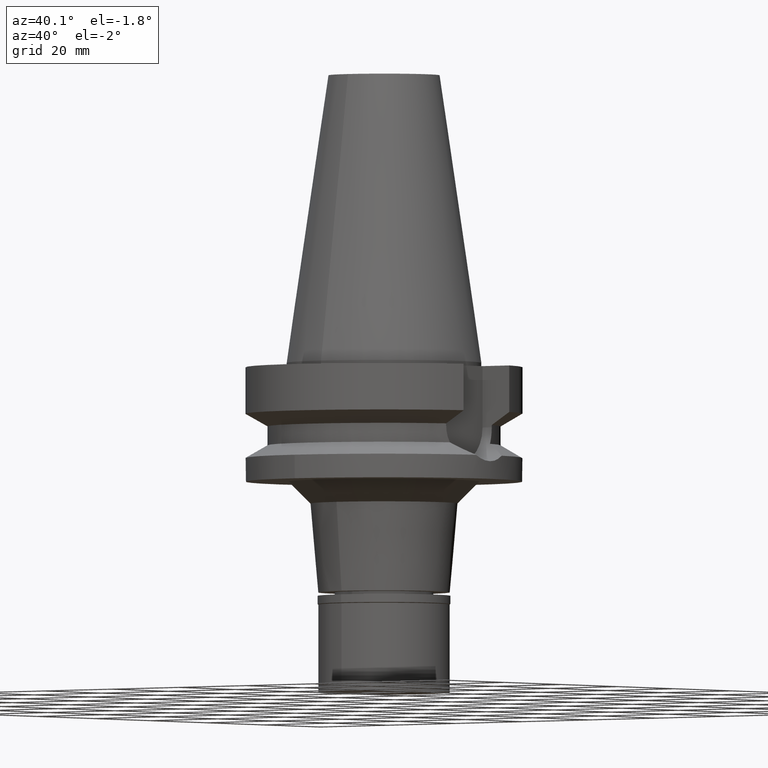
[diagram: clean part render]
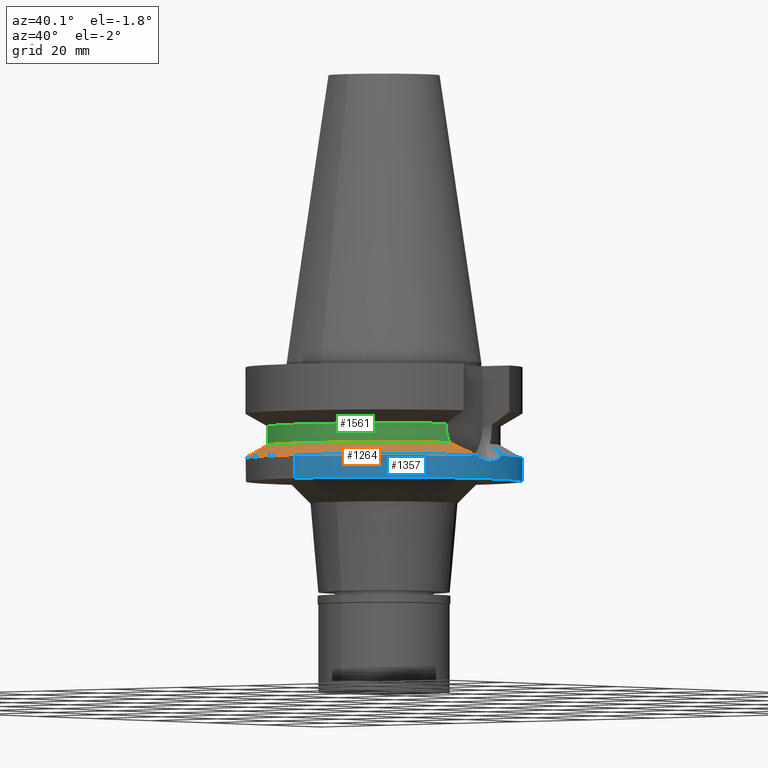
[diagram: same view with three faces highlighted in distinct colors, each labeled with its STEP entity id]
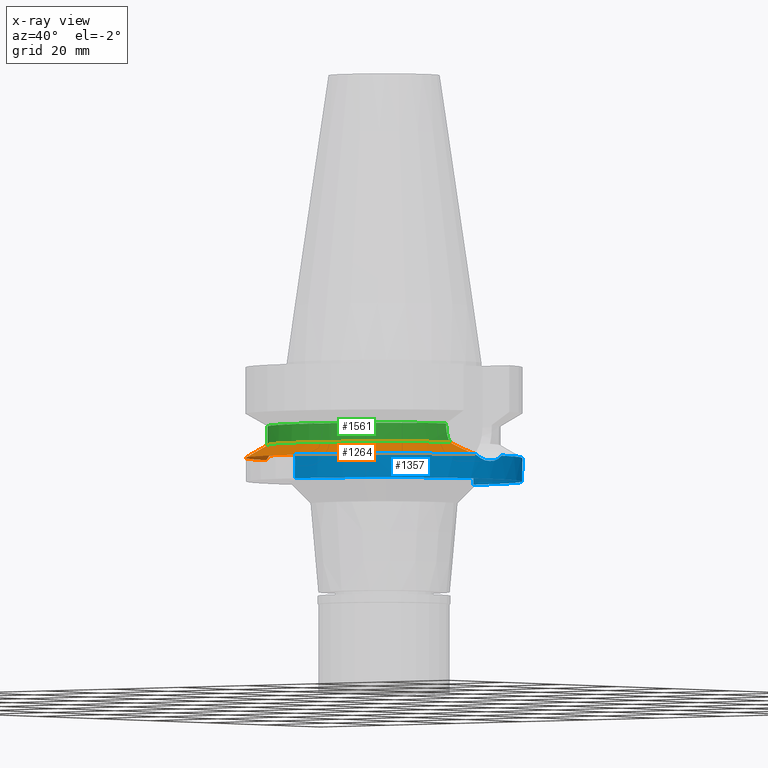
[diagram: x-ray of the same camera — body ghosted, the three highlighted faces saturated]
A machine part, auxiliary view with three faces highlighted in distinct colors.
The next image is the same camera in x-ray (body ghosted, the three faces saturated) — at least one of them is partly hidden behind the body in this view.
Their STEP definitions:

[orange] entity #1264 — the highlighted conical surface has half-angle 60 deg.
#48 = CARTESIAN_POINT ( 'NONE',  ( -29.40350388405149218, -5.603938212028698018, -20.72965517905958066 ) ) ;
#99 = EDGE_CURVE ( 'NONE', #1565, #2712, #1625, .T. ) ;
#110 = ORIENTED_EDGE ( 'NONE', *, *, #2774, .F. ) ;
#131 = ORIENTED_EDGE ( 'NONE', *, *, #2134, .F. ) ;
#154 = DIRECTION ( 'NONE',  ( -0.9634623335000935818, -0.2678438573619981722, 0.0000000000000000000 ) ) ;
#165 = CIRCLE ( 'NONE', #1531, 26.49999999999998224 ) ;
#167 = CARTESIAN_POINT ( 'NONE',  ( 0.0000000000000000000, 0.0000000000000000000, -20.19111867435999841 ) ) ;
#168 = CARTESIAN_POINT ( 'NONE',  ( 25.53175183775000079, -7.097862220092999941, -18.74774300138999905 ) ) ;
#186 = CARTESIAN_POINT ( 'NONE',  ( 27.86435918377263476, -6.316252926308689730, -19.94359010589186454 ) ) ;
#215 = DIRECTION ( 'NONE',  ( 0.0000000000000000000, 0.0000000000000000000, -1.000000000000000000 ) ) ;
#242 = CARTESIAN_POINT ( 'NONE',  ( -26.81419943380917204, -6.745339351560969199, -19.40659715485463366 ) ) ;
#312 = CARTESIAN_POINT ( 'NONE',  ( 0.0000000000000000000, 0.0000000000000000000, -18.74774300138999905 ) ) ;
#362 = EDGE_LOOP ( 'NONE', ( #683, #2777, #110, #131, #2847 ) ) ;
#463 = AXIS2_PLACEMENT_3D ( 'NONE', #1758, #832, #1802 ) ;
#470 = CARTESIAN_POINT ( 'NONE',  ( -31.17899877608999759, -4.485536235554000051, -21.63449434733000132 ) ) ;
#499 = DIRECTION ( 'NONE',  ( 0.0000000000000000000, 0.0000000000000000000, -1.000000000000000000 ) ) ;
#504 = CARTESIAN_POINT ( 'NONE',  ( -28.96710954436001018, -5.824544619855954508, -20.50686316746844184 ) ) ;
#540 = CARTESIAN_POINT ( 'NONE',  ( -28.91290062325497701, -5.850838485467669159, -20.47918176812470747 ) ) ;
#567 = CARTESIAN_POINT ( 'NONE',  ( -25.53175183775000079, -7.097862220092999941, -18.74774300138999905 ) ) ;
#661 = CARTESIAN_POINT ( 'NONE',  ( 27.59866864849412593, -6.421485500541467495, -19.80773105020917768 ) ) ;
#683 = ORIENTED_EDGE ( 'NONE', *, *, #2898, .F. ) ;
#695 = CARTESIAN_POINT ( 'NONE',  ( 28.79422121456662254, -5.907518177660484149, -20.41857338895112406 ) ) ;
#710 = CARTESIAN_POINT ( 'NONE',  ( 0.0000000000000000000, 0.0000000000000000000, -21.63449434733000132 ) ) ;
#832 = DIRECTION ( 'NONE',  ( 0.0000000000000000000, 0.0000000000000000000, -1.000000000000000000 ) ) ;
#908 = VERTEX_POINT ( 'NONE', #1366 ) ;
#912 = CARTESIAN_POINT ( 'NONE',  ( 28.61442838368106223, -5.991210968606418774, -20.32676291958354042 ) ) ;
#927 = CARTESIAN_POINT ( 'NONE',  ( 31.17899877608999759, -4.485536235554000051, -21.63449434733000132 ) ) ;
#1164 = CARTESIAN_POINT ( 'NONE',  ( 28.73364976554436367, -5.936010876309831374, -20.38764316961768941 ) ) ;
#1233 = CONICAL_SURFACE ( 'NONE', #2843, 29.00000000000000000, 1.047197551196400456 ) ;
#1264 = ADVANCED_FACE ( 'NONE', ( #1573 ), #1233, .T. ) ;
#1366 = CARTESIAN_POINT ( 'NONE',  ( 25.53175183775000079, -7.097862220092999941, -18.74774300138999905 ) ) ;
#1373 = DIRECTION ( 'NONE',  ( 0.0000000000000000000, 0.0000000000000000000, 1.000000000000000000 ) ) ;
#1443 = CARTESIAN_POINT ( 'NONE',  ( -25.53175183775000079, -7.097862220092999941, -18.74774300138999905 ) ) ;
#1531 = AXIS2_PLACEMENT_3D ( 'NONE', #312, #1373, #154 ) ;
#1533 = AXIS2_PLACEMENT_3D ( 'NONE', #710, #499, #1933 ) ;
#1565 = VERTEX_POINT ( 'NONE', #1769 ) ;
#1573 = FACE_OUTER_BOUND ( 'NONE', #362, .T. ) ;
#1625 = CIRCLE ( 'NONE', #463, 31.50000000000001421 ) ;
#1657 = CARTESIAN_POINT ( 'NONE',  ( 0.0000000000000000000, -31.50000000000000000, -21.63449434733000132 ) ) ;
#1724 = CARTESIAN_POINT ( 'NONE',  ( -30.85625216435878926, -4.730393970432071882, -21.47018599650202830 ) ) ;
#1758 = CARTESIAN_POINT ( 'NONE',  ( 0.0000000000000000000, 0.0000000000000000000, -21.63449434733000132 ) ) ;
#1769 = CARTESIAN_POINT ( 'NONE',  ( 31.17899877608999759, -4.485536235554000051, -21.63449434733000132 ) ) ;
#1802 = DIRECTION ( 'NONE',  ( 0.9898094849552905306, -0.1423979757318985240, 0.0000000000000000000 ) ) ;
#1853 = CARTESIAN_POINT ( 'NONE',  ( -31.17899877608999759, -4.485536235554000051, -21.63449434733000132 ) ) ;
#1915 = B_SPLINE_CURVE_WITH_KNOTS ( 'NONE', 3,
 ( #470, #1724, #3128, #2669, #2705, #48, #1984, #2460, #504, #540, #2635, #242, #1443 ),
 .UNSPECIFIED., .F., .F.,
 ( 4, 2, 2, 1, 2, 2, 4 ),
 ( 0.0000000000000000000, 0.2500000000000008882, 0.3750000000000011102, 0.4375000000000021094, 0.4687500000000023870, 0.5000000000000026645, 1.000000000000000000 ),
 .UNSPECIFIED. ) ;
#1933 = DIRECTION ( 'NONE',  ( 0.0000000000000000000, -1.000000000000000000, 0.0000000000000000000 ) ) ;
#1963 = DIRECTION ( 'NONE',  ( 0.0000000000000000000, -1.000000000000000000, 0.0000000000000000000 ) ) ;
#1984 = CARTESIAN_POINT ( 'NONE',  ( -29.24307602562605624, -5.687591951232541909, -20.64776784857496139 ) ) ;
#2075 = VERTEX_POINT ( 'NONE', #567 ) ;
#2105 = CARTESIAN_POINT ( 'NONE',  ( 26.17212399451469906, -6.921834887416557613, -19.07673254961257925 ) ) ;
#2133 = CARTESIAN_POINT ( 'NONE',  ( 29.75652916413529780, -5.448105611147416205, -20.90999356220572736 ) ) ;
#2134 = EDGE_CURVE ( 'NONE', #2075, #908, #165, .T. ) ;
#2177 = VERTEX_POINT ( 'NONE', #1853 ) ;
#2302 = CIRCLE ( 'NONE', #1533, 31.50000000000000000 ) ;
#2347 = EDGE_CURVE ( 'NONE', #2177, #2075, #1915, .T. ) ;
#2460 = CARTESIAN_POINT ( 'NONE',  ( -29.07810225808222171, -5.769943808655979112, -20.56353691852229915 ) ) ;
#2589 = CARTESIAN_POINT ( 'NONE',  ( 28.24654632375923313, -6.155093236593185857, -20.13887758022251617 ) ) ;
#2635 = CARTESIAN_POINT ( 'NONE',  ( -27.92181599709195439, -6.324301122582865808, -19.97306573289662879 ) ) ;
#2669 = CARTESIAN_POINT ( 'NONE',  ( -29.92007977566263222, -5.320280169802253489, -20.99321526959411344 ) ) ;
#2705 = CARTESIAN_POINT ( 'NONE',  ( -29.71829838874449337, -5.435026389750371223, -20.89029780692690963 ) ) ;
#2712 = VERTEX_POINT ( 'NONE', #1657 ) ;
#2774 = EDGE_CURVE ( 'NONE', #908, #1565, #3127, .T. ) ;
#2777 = ORIENTED_EDGE ( 'NONE', *, *, #99, .F. ) ;
#2843 = AXIS2_PLACEMENT_3D ( 'NONE', #167, #215, #1963 ) ;
#2847 = ORIENTED_EDGE ( 'NONE', *, *, #2347, .F. ) ;
#2898 = EDGE_CURVE ( 'NONE', #2712, #2177, #2302, .T. ) ;
#3076 = CARTESIAN_POINT ( 'NONE',  ( 26.76889971679631230, -6.728566986563055963, -19.38294419845960093 ) ) ;
#3093 = CARTESIAN_POINT ( 'NONE',  ( 28.43355272801973044, -6.073684701709576750, -20.23439745110571053 ) ) ;
#3107 = CARTESIAN_POINT ( 'NONE',  ( 30.53258623465156063, -4.975949163022271193, -21.30540962644920810 ) ) ;
#3127 = B_SPLINE_CURVE_WITH_KNOTS ( 'NONE', 3,
 ( #168, #2105, #3076, #661, #186, #2589, #3093, #912, #1164, #695, #2133, #3107, #927 ),
 .UNSPECIFIED., .F., .F.,
 ( 4, 2, 2, 1, 2, 2, 4 ),
 ( 0.0000000000000000000, 0.2500000000000010547, 0.3750000000000016653, 0.4375000000000013323, 0.4687500000000006106, 0.4999999999999998335, 1.000000000000000000 ),
 .UNSPECIFIED. ) ;
#3128 = CARTESIAN_POINT ( 'NONE',  ( -30.50117908778555531, -4.970651603780756211, -21.28943610688037680 ) ) ;

[blue] entity #1357 — the highlighted cylindrical surface (partial cylindrical patch) has radius 31.5 mm, axis along (0, 0, -1).
#6 = DIRECTION ( 'NONE',  ( 0.0000000000000000000, 1.000000000000000000, 0.0000000000000000000 ) ) ;
#36 = VERTEX_POINT ( 'NONE', #1468 ) ;
#99 = EDGE_CURVE ( 'NONE', #1565, #2712, #1625, .T. ) ;
#105 = CARTESIAN_POINT ( 'NONE',  ( 31.41965005813987588, 2.247072451102948953, -22.68008986002388738 ) ) ;
#136 = CARTESIAN_POINT ( 'NONE',  ( 31.40784684085238254, -2.406367806374613671, -22.63197621435551099 ) ) ;
#149 = CARTESIAN_POINT ( 'NONE',  ( 0.0000000000000000000, -31.50000000000000000, -21.63449434733000132 ) ) ;
#164 = CARTESIAN_POINT ( 'NONE',  ( 31.47114290507604295, -1.554796663187710148, -22.89008434577294793 ) ) ;
#191 = EDGE_CURVE ( 'NONE', #1565, #2492, #199, .T. ) ;
#199 = B_SPLINE_CURVE_WITH_KNOTS ( 'NONE', 3,
 ( #2561, #3074, #2805, #2575, #1321, #2057, #2037, #401, #136, #2298, #1114, #2342, #164, #2758, #373 ),
 .UNSPECIFIED., .F., .F.,
 ( 4, 2, 2, 1, 1, 1, 2, 2, 4 ),
 ( 0.0000000000000000000, 0.2500000000000011102, 0.3750000000000013323, 0.4375000000000013878, 0.4687500000000012212, 0.4843750000000013878, 0.4921875000000011102, 0.5000000000000008882, 1.000000000000000000 ),
 .UNSPECIFIED. ) ;
#247 = DIRECTION ( 'NONE',  ( 0.0000000000000000000, -1.000000000000000000, 0.0000000000000000000 ) ) ;
#311 = CARTESIAN_POINT ( 'NONE',  ( 31.50000000000000000, 0.0000000000000000000, -23.00000000000000000 ) ) ;
#356 = CARTESIAN_POINT ( 'NONE',  ( 31.47114559338426432, 1.356374570415840752, -22.88735630185001924 ) ) ;
#365 = EDGE_CURVE ( 'NONE', #3032, #36, #1327, .T. ) ;
#373 = CARTESIAN_POINT ( 'NONE',  ( 31.50000000000000000, 0.0000000000000000000, -23.00000000000000000 ) ) ;
#401 = CARTESIAN_POINT ( 'NONE',  ( 31.40207367289674067, -2.480881812461656288, -22.60840945407103320 ) ) ;
#416 = CARTESIAN_POINT ( 'NONE',  ( 0.0000000000000000000, 2.107433444312999912E-14, -27.00000000000000000 ) ) ;
#463 = AXIS2_PLACEMENT_3D ( 'NONE', #1758, #832, #1802 ) ;
#553 = CARTESIAN_POINT ( 'NONE',  ( 31.17899877608999759, 4.485536235554000051, -21.63449434733000132 ) ) ;
#568 = AXIS2_PLACEMENT_3D ( 'NONE', #416, #2180, #247 ) ;
#654 = ORIENTED_EDGE ( 'NONE', *, *, #365, .T. ) ;
#743 = CYLINDRICAL_SURFACE ( 'NONE', #1184, 31.50000000000000000 ) ;
#816 = DIRECTION ( 'NONE',  ( 0.0000000000000000000, 1.099151708819000049E-13, -1.000000000000000000 ) ) ;
#829 = CARTESIAN_POINT ( 'NONE',  ( 0.0000000000000000000, -31.50000000000000000, -27.00000000000000000 ) ) ;
#832 = DIRECTION ( 'NONE',  ( 0.0000000000000000000, 0.0000000000000000000, -1.000000000000000000 ) ) ;
#835 = CARTESIAN_POINT ( 'NONE',  ( 31.43710641057978350, 1.991379779744103296, -22.75094280097368227 ) ) ;
#1001 = VERTEX_POINT ( 'NONE', #1777 ) ;
#1058 = CARTESIAN_POINT ( 'NONE',  ( 31.49278639834606608, 0.7710438196499757035, -22.97268655621895306 ) ) ;
#1068 = CARTESIAN_POINT ( 'NONE',  ( 31.36328283755199919, 3.007832628915092954, -22.45025453262910986 ) ) ;
#1114 = CARTESIAN_POINT ( 'NONE',  ( 31.41185438971861288, -2.353388662175909030, -22.64832348432847908 ) ) ;
#1170 = EDGE_CURVE ( 'NONE', #2712, #3032, #2330, .T. ) ;
#1184 = AXIS2_PLACEMENT_3D ( 'NONE', #2631, #2871, #1669 ) ;
#1261 = CARTESIAN_POINT ( 'NONE',  ( 31.41700835831545646, 2.283543664118167449, -22.66933216880426727 ) ) ;
#1310 = CARTESIAN_POINT ( 'NONE',  ( 31.50000000000000000, 0.0000000000000000000, -23.00000000000000000 ) ) ;
#1321 = CARTESIAN_POINT ( 'NONE',  ( 31.35452407079063164, -3.025350768281658720, -22.41224209226361097 ) ) ;
#1327 = CIRCLE ( 'NONE', #568, 31.50000000000000000 ) ;
#1357 = ADVANCED_FACE ( 'NONE', ( #3105 ), #743, .T. ) ;
#1395 = EDGE_CURVE ( 'NONE', #2247, #1001, #1587, .T. ) ;
#1468 = CARTESIAN_POINT ( 'NONE',  ( 0.0000000000000000000, 31.50000000000000000, -27.00000000000000000 ) ) ;
#1530 = CARTESIAN_POINT ( 'NONE',  ( 0.0000000000000000000, 31.50000000000000000, -21.63449434733000132 ) ) ;
#1565 = VERTEX_POINT ( 'NONE', #1769 ) ;
#1575 = LINE ( 'NONE', #1530, #2041 ) ;
#1587 = CIRCLE ( 'NONE', #1998, 31.50000000000000000 ) ;
#1625 = CIRCLE ( 'NONE', #463, 31.50000000000001421 ) ;
#1657 = CARTESIAN_POINT ( 'NONE',  ( 0.0000000000000000000, -31.50000000000000000, -21.63449434733000132 ) ) ;
#1669 = DIRECTION ( 'NONE',  ( 0.0000000000000000000, -1.000000000000000000, 0.0000000000000000000 ) ) ;
#1758 = CARTESIAN_POINT ( 'NONE',  ( 0.0000000000000000000, 0.0000000000000000000, -21.63449434733000132 ) ) ;
#1760 = CARTESIAN_POINT ( 'NONE',  ( 31.44589798759550447, 1.844932280561417892, -22.78637270914717661 ) ) ;
#1769 = CARTESIAN_POINT ( 'NONE',  ( 31.17899877608999759, -4.485536235554000051, -21.63449434733000132 ) ) ;
#1774 = CARTESIAN_POINT ( 'NONE',  ( 31.42566608920675009, 2.161912855910136599, -22.70455434715237786 ) ) ;
#1777 = CARTESIAN_POINT ( 'NONE',  ( 31.17899877608999759, 4.485536235554000051, -21.63449434733000132 ) ) ;
#1786 = CARTESIAN_POINT ( 'NONE',  ( 31.28513683619772578, 3.747769718380133064, -22.12956222744666590 ) ) ;
#1802 = DIRECTION ( 'NONE',  ( 0.9898094849552905306, -0.1423979757318985240, 0.0000000000000000000 ) ) ;
#1809 = EDGE_LOOP ( 'NONE', ( #2184, #2533, #654, #1811, #2922, #2466, #2307 ) ) ;
#1811 = ORIENTED_EDGE ( 'NONE', *, *, #2558, .F. ) ;
#1998 = AXIS2_PLACEMENT_3D ( 'NONE', #2408, #2391, #6 ) ;
#2016 = CARTESIAN_POINT ( 'NONE',  ( 31.41422043550593557, 2.321593114297240579, -22.65797165830771576 ) ) ;
#2026 = CARTESIAN_POINT ( 'NONE',  ( 31.46212859131685491, 1.551903289493235860, -22.85152805513951435 ) ) ;
#2037 = CARTESIAN_POINT ( 'NONE',  ( 31.38995345624571343, -2.631089804232396467, -22.55883194694496652 ) ) ;
#2041 = VECTOR ( 'NONE', #816, 1000.000000000000000 ) ;
#2057 = CARTESIAN_POINT ( 'NONE',  ( 31.37858090356238705, -2.761758643354512266, -22.51201132467612354 ) ) ;
#2180 = DIRECTION ( 'NONE',  ( 0.0000000000000000000, 0.0000000000000000000, 1.000000000000000000 ) ) ;
#2184 = ORIENTED_EDGE ( 'NONE', *, *, #99, .T. ) ;
#2247 = VERTEX_POINT ( 'NONE', #2614 ) ;
#2288 = CARTESIAN_POINT ( 'NONE',  ( 31.50000000000000000, 0.3825415463719509246, -23.00000000000000355 ) ) ;
#2298 = CARTESIAN_POINT ( 'NONE',  ( 31.41025956846841538, -2.374562832960464220, -22.64181864170914338 ) ) ;
#2307 = ORIENTED_EDGE ( 'NONE', *, *, #191, .F. ) ;
#2330 = LINE ( 'NONE', #149, #2749 ) ;
#2342 = CARTESIAN_POINT ( 'NONE',  ( 31.41252693101175097, -2.344406219114904655, -22.65106619706597257 ) ) ;
#2343 = DIRECTION ( 'NONE',  ( 0.0000000000000000000, -1.105773104655000034E-13, -1.000000000000000000 ) ) ;
#2391 = DIRECTION ( 'NONE',  ( 0.0000000000000000000, 0.0000000000000000000, -1.000000000000000000 ) ) ;
#2408 = CARTESIAN_POINT ( 'NONE',  ( 0.0000000000000000000, 0.0000000000000000000, -21.63449434733000132 ) ) ;
#2466 = ORIENTED_EDGE ( 'NONE', *, *, #2503, .F. ) ;
#2492 = VERTEX_POINT ( 'NONE', #1310 ) ;
#2503 = EDGE_CURVE ( 'NONE', #2492, #1001, #3091, .T. ) ;
#2533 = ORIENTED_EDGE ( 'NONE', *, *, #1170, .T. ) ;
#2558 = EDGE_CURVE ( 'NONE', #2247, #36, #1575, .T. ) ;
#2561 = CARTESIAN_POINT ( 'NONE',  ( 31.17899877608999759, -4.485536235554000051, -21.63449434733000132 ) ) ;
#2575 = CARTESIAN_POINT ( 'NONE',  ( 31.33673721240262822, -3.204096009966329373, -22.33755624056735201 ) ) ;
#2614 = CARTESIAN_POINT ( 'NONE',  ( 0.0000000000000000000, 31.50000000000000000, -21.63449434733000132 ) ) ;
#2631 = CARTESIAN_POINT ( 'NONE',  ( 0.0000000000000000000, 2.107433444312999912E-14, 72.08499999999999375 ) ) ;
#2712 = VERTEX_POINT ( 'NONE', #1657 ) ;
#2749 = VECTOR ( 'NONE', #2343, 1000.000000000000000 ) ;
#2758 = CARTESIAN_POINT ( 'NONE',  ( 31.49999999999999289, -0.7651554268863721697, -23.00000000000000355 ) ) ;
#2805 = CARTESIAN_POINT ( 'NONE',  ( 31.27812972761810073, -3.746556030102364598, -22.08615384558201100 ) ) ;
#2871 = DIRECTION ( 'NONE',  ( 0.0000000000000000000, 0.0000000000000000000, -1.000000000000000000 ) ) ;
#2922 = ORIENTED_EDGE ( 'NONE', *, *, #1395, .T. ) ;
#2960 = CARTESIAN_POINT ( 'NONE',  ( 31.41523313603342871, 2.307851765032669089, -22.66209965112653180 ) ) ;
#3032 = VERTEX_POINT ( 'NONE', #829 ) ;
#3074 = CARTESIAN_POINT ( 'NONE',  ( 31.23206219160106656, -4.116692003674748079, -21.88200209906488070 ) ) ;
#3091 = B_SPLINE_CURVE_WITH_KNOTS ( 'NONE', 3,
 ( #311, #2288, #1058, #356, #2026, #1760, #835, #1774, #105, #1261, #2960, #2016, #1068, #1786, #553 ),
 .UNSPECIFIED., .F., .F.,
 ( 4, 2, 2, 1, 1, 1, 2, 2, 4 ),
 ( 0.0000000000000000000, 0.2500000000000113243, 0.3750000000000170974, 0.4375000000000200950, 0.4687500000000218159, 0.4843750000000223155, 0.4921875000000220379, 0.5000000000000216493, 1.000000000000000000 ),
 .UNSPECIFIED. ) ;
#3105 = FACE_OUTER_BOUND ( 'NONE', #1809, .T. ) ;

[green] entity #1561 — the highlighted cylindrical surface (partial cylindrical patch) has radius 26.5 mm, axis along (0, 0, -1).
#53 = CARTESIAN_POINT ( 'NONE',  ( 0.0000000000000000000, 1.065333950388000029E-14, -14.45225699861000024 ) ) ;
#141 = CARTESIAN_POINT ( 'NONE',  ( -25.27268923712988880, -7.973297925131175745, -16.24528153449228896 ) ) ;
#154 = DIRECTION ( 'NONE',  ( -0.9634623335000935818, -0.2678438573619981722, 0.0000000000000000000 ) ) ;
#165 = CIRCLE ( 'NONE', #1531, 26.49999999999998224 ) ;
#200 = DIRECTION ( 'NONE',  ( 1.007127822896004137E-06, 3.158720356561015410E-06, -0.9999999999945041740 ) ) ;
#226 = CARTESIAN_POINT ( 'NONE',  ( -25.24772266958000344, -8.050000000000000711, -14.94999999999999929 ) ) ;
#294 = DIRECTION ( 'NONE',  ( 0.9527442516822307583, -0.3037735849057093818, 0.0000000000000000000 ) ) ;
#312 = CARTESIAN_POINT ( 'NONE',  ( 0.0000000000000000000, 0.0000000000000000000, -18.74774300138999905 ) ) ;
#345 = CARTESIAN_POINT ( 'NONE',  ( -25.32418278270155554, -7.806361859900751377, -16.91561764571308757 ) ) ;
#359 = CARTESIAN_POINT ( 'NONE',  ( -25.39163787691478191, -7.584845155549783335, -17.65187522139927623 ) ) ;
#410 = CARTESIAN_POINT ( 'NONE',  ( 25.29454383591339806, -7.902025198966803110, -16.48862120007727583 ) ) ;
#442 = CARTESIAN_POINT ( 'NONE',  ( 25.28049748601338109, -7.946994850372498753, -16.24429618630633598 ) ) ;
#545 = ORIENTED_EDGE ( 'NONE', *, *, #2058, .F. ) ;
#548 = DIRECTION ( 'NONE',  ( 0.0000000000000000000, 0.0000000000000000000, -1.000000000000000000 ) ) ;
#560 = ORIENTED_EDGE ( 'NONE', *, *, #1699, .F. ) ;
#567 = CARTESIAN_POINT ( 'NONE',  ( -25.53175183775000079, -7.097862220092999941, -18.74774300138999905 ) ) ;
#600 = DIRECTION ( 'NONE',  ( -2.947868910946043749E-06, 9.245593034173126733E-06, 0.9999999999529145533 ) ) ;
#613 = CARTESIAN_POINT ( 'NONE',  ( -25.24772266958000344, -8.050000000000000711, -14.94999999999999929 ) ) ;
#701 = B_SPLINE_CURVE_WITH_KNOTS ( 'NONE', 3,
 ( #1156, #2863, #2384, #3114, #442, #410, #2398, #702, #1907, #1926, #2570, #2124, #2111, #1376 ),
 .UNSPECIFIED., .F., .F.,
 ( 4, 2, 2, 1, 1, 2, 2, 4 ),
 ( 0.0000000000000000000, 0.2499999999999875655, 0.3749999999999807376, 0.4374999999999785727, 0.4687499999999761302, 0.4843749999999760747, 0.4999999999999760192, 1.000000000000000000 ),
 .UNSPECIFIED. ) ;
#702 = CARTESIAN_POINT ( 'NONE',  ( 25.31205300124015523, -7.845639649894743606, -16.75318914316934382 ) ) ;
#797 = CARTESIAN_POINT ( 'NONE',  ( -25.53175183775000079, -7.097862220092999941, -18.74774300138999905 ) ) ;
#802 = CARTESIAN_POINT ( 'NONE',  ( 0.0000000000000000000, 2.107433444312999912E-14, 72.08499999999999375 ) ) ;
#811 = CYLINDRICAL_SURFACE ( 'NONE', #1952, 26.50000000000000000 ) ;
#908 = VERTEX_POINT ( 'NONE', #1366 ) ;
#959 = ORIENTED_EDGE ( 'NONE', *, *, #2123, .F. ) ;
#1015 = ORIENTED_EDGE ( 'NONE', *, *, #2134, .T. ) ;
#1040 = DIRECTION ( 'NONE',  ( 0.0000000000000000000, 0.0000000000000000000, -1.000000000000000000 ) ) ;
#1049 = CARTESIAN_POINT ( 'NONE',  ( -25.24772266958000344, -8.050000000000000711, -14.94999999999999929 ) ) ;
#1094 = CARTESIAN_POINT ( 'NONE',  ( -25.32549268443488444, -7.802113524032651348, -16.93239579624749425 ) ) ;
#1156 = CARTESIAN_POINT ( 'NONE',  ( 25.24772266958000344, -8.050000000000000711, -14.94999999999999929 ) ) ;
#1281 = CARTESIAN_POINT ( 'NONE',  ( -25.24772266958000344, -8.049999999999979394, -15.58995917009923993 ) ) ;
#1307 = CARTESIAN_POINT ( 'NONE',  ( 25.24772266958000344, -8.050000000000000711, -14.94999999999999929 ) ) ;
#1312 = CARTESIAN_POINT ( 'NONE',  ( -25.35410982913639444, -7.708872424743455909, -17.26994189693683879 ) ) ;
#1366 = CARTESIAN_POINT ( 'NONE',  ( 25.53175183775000079, -7.097862220092999941, -18.74774300138999905 ) ) ;
#1373 = DIRECTION ( 'NONE',  ( 0.0000000000000000000, 0.0000000000000000000, 1.000000000000000000 ) ) ;
#1376 = CARTESIAN_POINT ( 'NONE',  ( 25.53175183775000079, -7.097862220092999941, -18.74774300138999905 ) ) ;
#1378 = VECTOR ( 'NONE', #600, 1000.000000000000000 ) ;
#1479 = VECTOR ( 'NONE', #200, 999.9999999999998863 ) ;
#1493 = EDGE_CURVE ( 'NONE', #2634, #2940, #2900, .T. ) ;
#1510 = DIRECTION ( 'NONE',  ( 0.0000000000000000000, -1.000000000000000000, 0.0000000000000000000 ) ) ;
#1531 = AXIS2_PLACEMENT_3D ( 'NONE', #312, #1373, #154 ) ;
#1561 = ADVANCED_FACE ( 'NONE', ( #1755 ), #811, .T. ) ;
#1630 = VERTEX_POINT ( 'NONE', #226 ) ;
#1643 = LINE ( 'NONE', #2379, #1479 ) ;
#1690 = CARTESIAN_POINT ( 'NONE',  ( -25.24772413676000227, -8.049995398395999757, -14.45229216087999902 ) ) ;
#1699 = EDGE_CURVE ( 'NONE', #3044, #908, #701, .T. ) ;
#1716 = B_SPLINE_CURVE_WITH_KNOTS ( 'NONE', 3,
 ( #797, #1807, #2265, #359, #1763, #1312, #2323, #1821, #2780, #1094, #345, #141, #1281, #1049 ),
 .UNSPECIFIED., .F., .F.,
 ( 4, 2, 2, 1, 1, 2, 2, 4 ),
 ( 0.0000000000000000000, 0.2500000000000173750, 0.3750000000000248135, 0.4375000000000286993, 0.4687500000000293099, 0.4843750000000282552, 0.5000000000000272005, 1.000000000000000000 ),
 .UNSPECIFIED. ) ;
#1755 = FACE_OUTER_BOUND ( 'NONE', #2837, .T. ) ;
#1763 = CARTESIAN_POINT ( 'NONE',  ( -25.37572056917267460, -7.637749951107052127, -17.49806859187443564 ) ) ;
#1794 = AXIS2_PLACEMENT_3D ( 'NONE', #53, #1040, #294 ) ;
#1803 = CARTESIAN_POINT ( 'NONE',  ( 25.24772266958000344, -8.050000000000000711, -14.45225699861000024 ) ) ;
#1807 = CARTESIAN_POINT ( 'NONE',  ( -25.48481574508659619, -7.266696248285210658, -18.43219751299116638 ) ) ;
#1821 = CARTESIAN_POINT ( 'NONE',  ( -25.33291622355779182, -7.778016509996969141, -17.02546682202009976 ) ) ;
#1907 = CARTESIAN_POINT ( 'NONE',  ( 25.31651564365630946, -7.831204104224905649, -16.81418330723276355 ) ) ;
#1926 = CARTESIAN_POINT ( 'NONE',  ( 25.31953951064866715, -7.821415171321439708, -16.85483643466232095 ) ) ;
#1952 = AXIS2_PLACEMENT_3D ( 'NONE', #802, #548, #1510 ) ;
#2058 = EDGE_CURVE ( 'NONE', #2075, #1630, #1716, .T. ) ;
#2061 = LINE ( 'NONE', #613, #1378 ) ;
#2075 = VERTEX_POINT ( 'NONE', #567 ) ;
#2111 = CARTESIAN_POINT ( 'NONE',  ( 25.43788515050049526, -7.435510499323333633, -18.11668898747533163 ) ) ;
#2123 = EDGE_CURVE ( 'NONE', #1630, #2940, #2061, .T. ) ;
#2124 = CARTESIAN_POINT ( 'NONE',  ( 25.36818004982163899, -7.663723843674690173, -17.48832929065082453 ) ) ;
#2134 = EDGE_CURVE ( 'NONE', #2075, #908, #165, .T. ) ;
#2265 = CARTESIAN_POINT ( 'NONE',  ( -25.44392024329485480, -7.408267248949534256, -18.11703320962315544 ) ) ;
#2323 = CARTESIAN_POINT ( 'NONE',  ( -25.34387076451247012, -7.742375422224786696, -17.15652271135520479 ) ) ;
#2379 = CARTESIAN_POINT ( 'NONE',  ( 25.24772216828000282, -8.050001572268998373, -14.45224498509000099 ) ) ;
#2384 = CARTESIAN_POINT ( 'NONE',  ( 25.25396549175778560, -8.030898715954540634, -15.59375012140842820 ) ) ;
#2398 = CARTESIAN_POINT ( 'NONE',  ( 25.30215227544257317, -7.877591541979575673, -16.61078271360463177 ) ) ;
#2570 = CARTESIAN_POINT ( 'NONE',  ( 25.32121330089755418, -7.815992399065574858, -16.87694767644807214 ) ) ;
#2634 = VERTEX_POINT ( 'NONE', #1803 ) ;
#2729 = EDGE_CURVE ( 'NONE', #2634, #3044, #1643, .T. ) ;
#2780 = CARTESIAN_POINT ( 'NONE',  ( -25.32843378481433305, -7.792569787454151076, -16.96958526498131548 ) ) ;
#2837 = EDGE_LOOP ( 'NONE', ( #545, #1015, #560, #3109, #2879, #959 ) ) ;
#2863 = CARTESIAN_POINT ( 'NONE',  ( 25.24772266958001055, -8.050000000000000711, -15.26998665910054243 ) ) ;
#2879 = ORIENTED_EDGE ( 'NONE', *, *, #1493, .T. ) ;
#2900 = CIRCLE ( 'NONE', #1794, 26.50000000000000711 ) ;
#2940 = VERTEX_POINT ( 'NONE', #1690 ) ;
#3044 = VERTEX_POINT ( 'NONE', #1307 ) ;
#3109 = ORIENTED_EDGE ( 'NONE', *, *, #2729, .F. ) ;
#3114 = CARTESIAN_POINT ( 'NONE',  ( 25.27269395829114984, -7.971776493309084444, -16.08141134955778284 ) ) ;